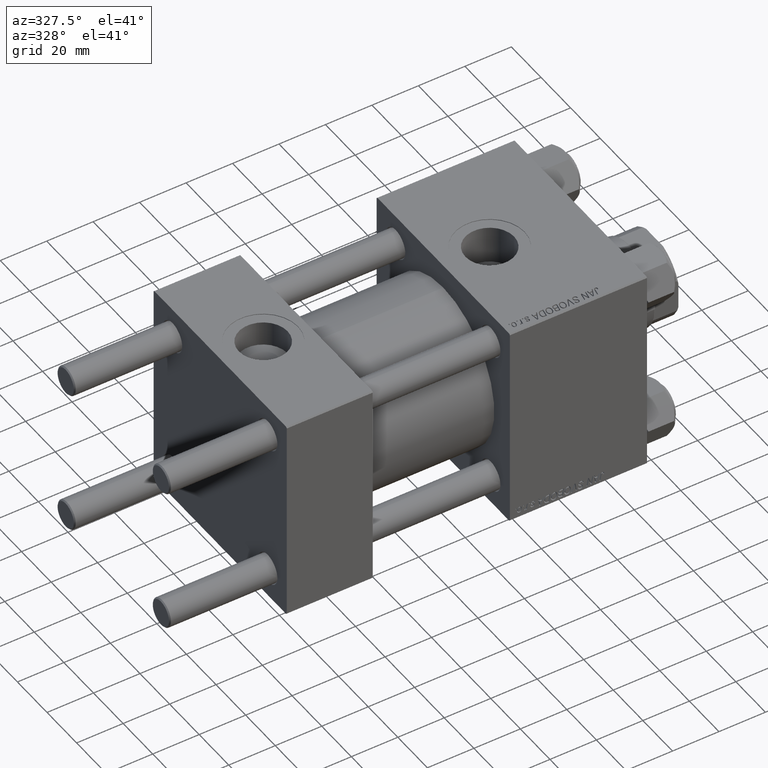
[diagram: clean part render]
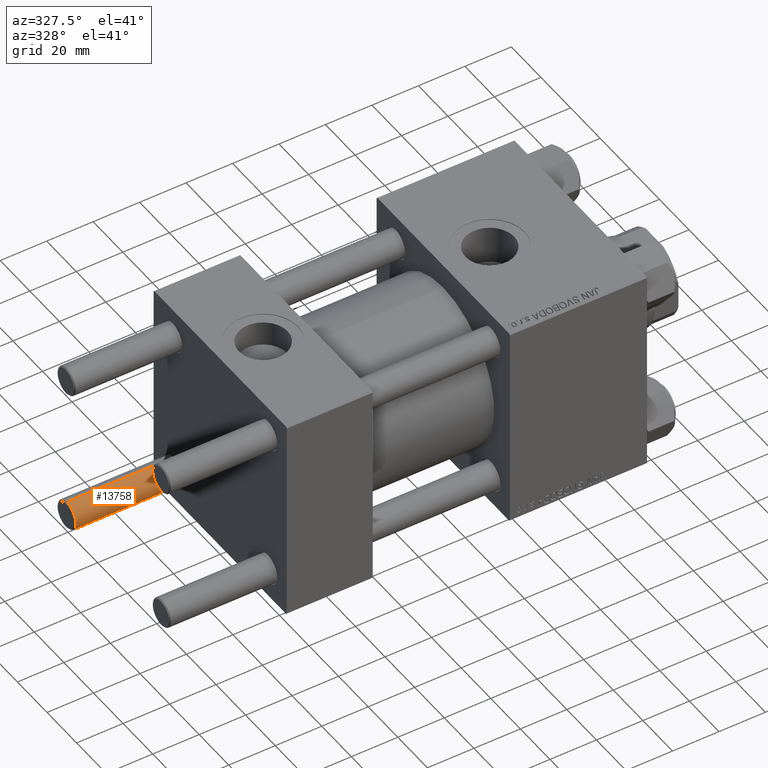
[diagram: same view with one face highlighted and labeled with its STEP entity id]
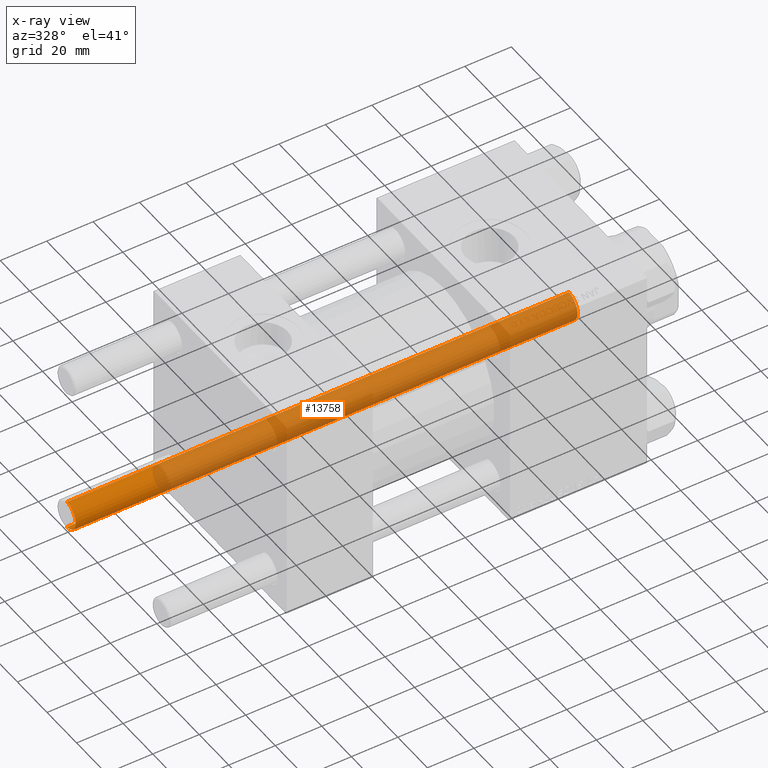
[diagram: x-ray of the same camera — body ghosted, the highlighted face saturated]
A machine part, auxiliary view. The second image highlights one B-rep face of the part: STEP entity #13758.
The next image is the same camera in x-ray: the body ghosted, the highlighted face saturated — about 83% of this face is hidden behind the body in this view.
In plain terms, the highlighted cylindrical surface (edge-blend (fillet) strip) has radius 6 mm, axis along (1, 0, -0).
Its self-contained STEP definition (entity closure, byte-faithful):
#1591 = CARTESIAN_POINT ( 'NONE',  ( 0.000000000000000000, 0.000000000000000000, 217.0000000000000000 ) ) ;
#1938 = ORIENTED_EDGE ( 'NONE', *, *, #15168, .F. ) ;
#2758 = EDGE_CURVE ( 'NONE', #34348, #38426, #11404, .T. ) ;
#3964 = ORIENTED_EDGE ( 'NONE', *, *, #48593, .T. ) ;
#4966 = AXIS2_PLACEMENT_3D ( 'NONE', #9236, #27882, #42358 ) ;
#6852 = LINE ( 'NONE', #33374, #49443 ) ;
#7996 = CARTESIAN_POINT ( 'NONE',  ( 0.000000000000000000, 0.000000000000000000, 0.4999999999999449329 ) ) ;
#9236 = CARTESIAN_POINT ( 'NONE',  ( 0.000000000000000000, 0.000000000000000000, 216.4999999999999716 ) ) ;
#9752 = DIRECTION ( 'NONE',  ( -0.000000000000000000, -0.000000000000000000, -1.000000000000000000 ) ) ;
#10374 = CIRCLE ( 'NONE', #35333, 6.000000000000000888 ) ;
#11404 = CIRCLE ( 'NONE', #4966, 6.000000000000000888 ) ;
#12340 = VERTEX_POINT ( 'NONE', #15522 ) ;
#13758 = ADVANCED_FACE ( 'NONE', ( #39419 ), #44230, .T. ) ;
#13836 = VERTEX_POINT ( 'NONE', #18687 ) ;
#15168 = EDGE_CURVE ( 'NONE', #34348, #12340, #6852, .T. ) ;
#15522 = CARTESIAN_POINT ( 'NONE',  ( 6.000000000000000888, 7.347880794884120722E-16, 0.4999999999999449329 ) ) ;
#18687 = CARTESIAN_POINT ( 'NONE',  ( -6.000000000000000888, 0.000000000000000000, 0.4999999999999449329 ) ) ;
#23378 = DIRECTION ( 'NONE',  ( -0.000000000000000000, -0.000000000000000000, 1.000000000000000000 ) ) ;
#25194 = ORIENTED_EDGE ( 'NONE', *, *, #31915, .T. ) ;
#27882 = DIRECTION ( 'NONE',  ( 0.000000000000000000, 0.000000000000000000, -1.000000000000000000 ) ) ;
#28082 = EDGE_LOOP ( 'NONE', ( #1938, #38488, #3964, #25194 ) ) ;
#28828 = DIRECTION ( 'NONE',  ( -0.000000000000000000, -0.000000000000000000, -1.000000000000000000 ) ) ;
#28932 = CARTESIAN_POINT ( 'NONE',  ( -6.000000000000000888, 0.000000000000000000, 217.0000000000000000 ) ) ;
#31915 = EDGE_CURVE ( 'NONE', #13836, #12340, #10374, .T. ) ;
#32471 = AXIS2_PLACEMENT_3D ( 'NONE', #1591, #28828, #43222 ) ;
#33374 = CARTESIAN_POINT ( 'NONE',  ( 6.000000000000000888, 7.347880794884120722E-16, 217.0000000000000000 ) ) ;
#33497 = CARTESIAN_POINT ( 'NONE',  ( -6.000000000000000888, 0.000000000000000000, 216.4999999999999716 ) ) ;
#34348 = VERTEX_POINT ( 'NONE', #49825 ) ;
#34364 = DIRECTION ( 'NONE',  ( -0.000000000000000000, -0.000000000000000000, -1.000000000000000000 ) ) ;
#35333 = AXIS2_PLACEMENT_3D ( 'NONE', #7996, #23378, #35507 ) ;
#35507 = DIRECTION ( 'NONE',  ( 1.000000000000000000, 0.000000000000000000, 0.000000000000000000 ) ) ;
#37033 = VECTOR ( 'NONE', #9752, 1000.000000000000000 ) ;
#38426 = VERTEX_POINT ( 'NONE', #33497 ) ;
#38488 = ORIENTED_EDGE ( 'NONE', *, *, #2758, .T. ) ;
#39419 = FACE_OUTER_BOUND ( 'NONE', #28082, .T. ) ;
#42358 = DIRECTION ( 'NONE',  ( 1.000000000000000000, 0.000000000000000000, 0.000000000000000000 ) ) ;
#43222 = DIRECTION ( 'NONE',  ( -1.000000000000000000, 0.000000000000000000, 0.000000000000000000 ) ) ;
#43585 = LINE ( 'NONE', #28932, #37033 ) ;
#44230 = CYLINDRICAL_SURFACE ( 'NONE', #32471, 6.000000000000000888 ) ;
#48593 = EDGE_CURVE ( 'NONE', #38426, #13836, #43585, .T. ) ;
#49443 = VECTOR ( 'NONE', #34364, 1000.000000000000000 ) ;
#49825 = CARTESIAN_POINT ( 'NONE',  ( 6.000000000000000888, 7.347880794884120722E-16, 216.4999999999999716 ) ) ;